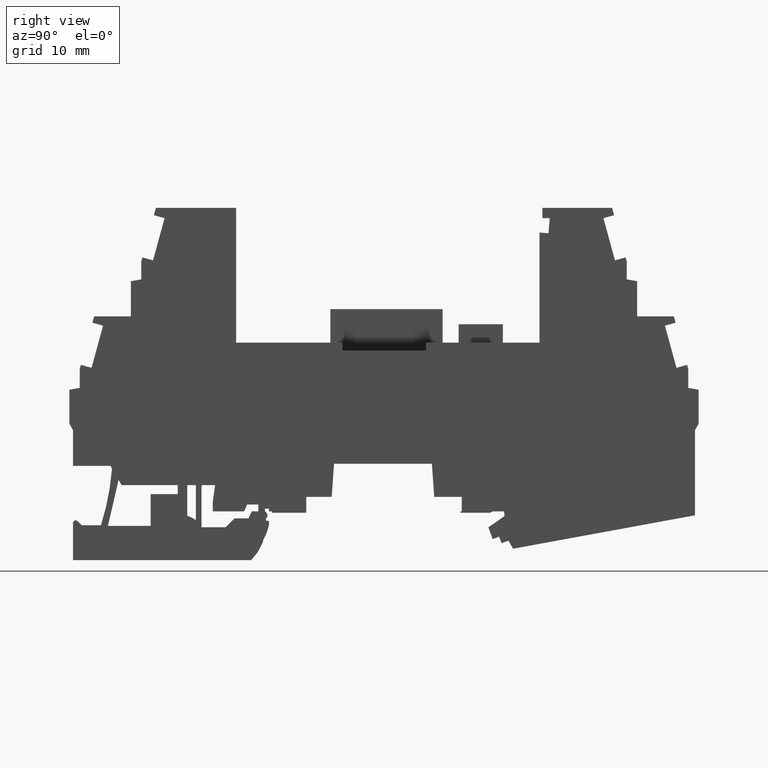
[diagram: clean part render]
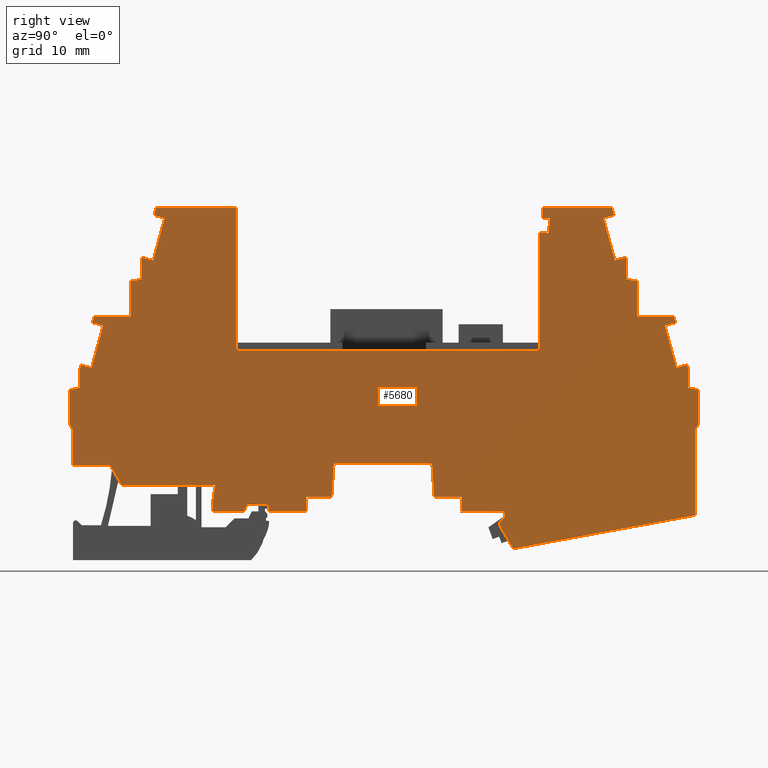
[diagram: same view with one face highlighted and labeled with its STEP entity id]
A machine part, right view. The second image highlights one B-rep face of the part: STEP entity #5680.
In plain terms, the highlighted planar face has unit normal (-1, 0, 0).
Its self-contained STEP definition (entity closure, byte-faithful):
#10=CARTESIAN_POINT('',(163.675787424711,45.2748719518251,
-0.938341446413222));
#20=DIRECTION('',(1.31820478495376E-13,-4.39608926050624E-11,-1.));
#30=DIRECTION('',(1.,5.77082812486863E-24,1.31820478495376E-13));
#40=AXIS2_PLACEMENT_3D('',#10,#20,#30);
#50=PLANE('',#40);
#60=CARTESIAN_POINT('',(96.7530202407098,30.0424286100119,
-0.938341445752412));
#70=DIRECTION('',(2.56261314530685E-13,1.,-4.39608926050624E-11));
#80=VECTOR('',#70,1.);
#90=LINE('',#60,#80);
#100=CARTESIAN_POINT('',(96.7530202407152,51.1748719518589,
-0.938341446681415));
#110=VERTEX_POINT('',#100);
#120=CARTESIAN_POINT('',(96.7530202407205,71.8738971800403,
-0.938341447591361));
#130=VERTEX_POINT('',#120);
#140=EDGE_CURVE('',#110,#130,#90,.T.);
#150=ORIENTED_EDGE('',*,*,#140,.T.);
#160=CARTESIAN_POINT('',(171.854165367466,51.1748719518588,
-0.938341446671515));
#170=DIRECTION('',(-1.,2.48441510225022E-16,-1.31820478495389E-13));
#180=VECTOR('',#170,1.);
#190=LINE('',#160,#180);
#200=CARTESIAN_POINT('',(140.653020451246,51.1748719518588,
-0.938341446675626));
#210=VERTEX_POINT('',#200);
#220=EDGE_CURVE('',#210,#110,#190,.T.);
#230=ORIENTED_EDGE('',*,*,#220,.T.);
#240=CARTESIAN_POINT('',(140.653020451246,30.0424286100119,
-0.938341445746625));
#250=DIRECTION('',(-3.18235044304956E-26,-1.,4.39608926050624E-11));
#260=VECTOR('',#250,1.);
#270=LINE('',#240,#260);
#280=CARTESIAN_POINT('',(140.653020451246,68.3024770578476,
-0.938341447428572));
#290=VERTEX_POINT('',#280);
#300=EDGE_CURVE('',#290,#210,#270,.T.);
#310=ORIENTED_EDGE('',*,*,#300,.T.);
#320=CARTESIAN_POINT('',(150.854165360675,67.4655827229434,
-0.938341447390435));
#330=DIRECTION('',(0.996651672605884,-0.0817645613447162,
3.72582820561022E-12));
#340=VECTOR('',#330,1.);
#350=LINE('',#320,#340);
#360=CARTESIAN_POINT('',(141.954397861838,68.1957130238435,
-0.938341447423708));
#370=VERTEX_POINT('',#360);
#380=EDGE_CURVE('',#290,#370,#350,.T.);
#390=ORIENTED_EDGE('',*,*,#380,.F.);
#400=CARTESIAN_POINT('',(139.972880387126,44.0424286058733,
-0.938341443299544));
#410=DIRECTION('',(0.0817645613447245,0.996651672605883,
-4.70011343753861E-11));
#420=VECTOR('',#410,1.);
#430=LINE('',#400,#420);
#440=CARTESIAN_POINT('',(142.134058703453,70.3856505145184,
-0.938341447519953));
#450=VERTEX_POINT('',#440);
#460=EDGE_CURVE('',#370,#450,#430,.T.);
#470=ORIENTED_EDGE('',*,*,#460,.F.);
#480=CARTESIAN_POINT('',(150.854165360675,70.3856505145184,
-0.938341447518805));
#490=DIRECTION('',(-1.,-2.48441503814189E-16,-1.3182047849537E-13));
#500=VECTOR('',#490,1.);
#510=LINE('',#480,#500);
#520=CARTESIAN_POINT('',(141.074778119476,70.3856505145184,
-0.938341447520092));
#530=VERTEX_POINT('',#520);
#540=EDGE_CURVE('',#450,#530,#510,.T.);
#550=ORIENTED_EDGE('',*,*,#540,.F.);
#560=CARTESIAN_POINT('',(141.074778119476,44.0424286058733,
-0.938341443347982));
#570=DIRECTION('',(1.79793434665674E-23,1.,-4.35524965984235E-11));
#580=VECTOR('',#570,1.);
#590=LINE('',#560,#580);
#600=CARTESIAN_POINT('',(141.074778119476,71.8738971800403,
-0.938341447585517));
#610=VERTEX_POINT('',#600);
#620=EDGE_CURVE('',#530,#610,#590,.T.);
#630=ORIENTED_EDGE('',*,*,#620,.F.);
#640=CARTESIAN_POINT('',(150.854165360675,71.8738971800403,
-0.93834144758423));
#650=DIRECTION('',(1.,4.27677063874898E-23,1.31820478495383E-13));
#660=VECTOR('',#650,1.);
#670=LINE('',#640,#660);
#680=CARTESIAN_POINT('',(151.153287379428,71.8738971800403,
-0.93834144758419));
#690=VERTEX_POINT('',#680);
#700=EDGE_CURVE('',#610,#690,#670,.T.);
#710=ORIENTED_EDGE('',*,*,#700,.F.);
#720=CARTESIAN_POINT('',(158.767115604835,44.0424286058733,
-0.938341446381106));
#730=DIRECTION('',(-0.263873049965359,0.964557418457802,
-4.22984758669483E-11));
#740=VECTOR('',#730,1.);
#750=LINE('',#720,#740);
#760=CARTESIAN_POINT('',(151.446544502388,70.801929680881,
-0.938341447537027));
#770=VERTEX_POINT('',#760);
#780=EDGE_CURVE('',#770,#690,#750,.T.);
#790=ORIENTED_EDGE('',*,*,#780,.T.);
#800=CARTESIAN_POINT('',(85.4518755928881,52.747831258784,
-0.938341446734807));
#810=DIRECTION('',(0.964557418457813,0.26387304996532,
-1.19815583951361E-11));
#820=VECTOR('',#810,1.);
#830=LINE('',#800,#820);
#840=CARTESIAN_POINT('',(149.903252632856,70.3797328009367,
-0.938341447518669));
#850=VERTEX_POINT('',#840);
#860=EDGE_CURVE('',#850,#770,#830,.T.);
#870=ORIENTED_EDGE('',*,*,#860,.T.);
#880=CARTESIAN_POINT('',(157.108323738862,44.0424286058733,
-0.938341446380448));
#890=DIRECTION('',(-0.263873049965258,0.96455741845783,
-4.22984481113694E-11));
#900=VECTOR('',#890,1.);
#910=LINE('',#880,#900);
#920=CARTESIAN_POINT('',(151.572249673886,64.2789071291908,
-0.938341447250252));
#930=VERTEX_POINT('',#920);
#940=EDGE_CURVE('',#930,#850,#910,.T.);
#950=ORIENTED_EDGE('',*,*,#940,.T.);
#960=CARTESIAN_POINT('',(85.4518755928881,46.1904196636059,
-0.938341446446538));
#970=DIRECTION('',(-0.964557418457773,-0.263873049965463,
1.19815861507196E-11));
#980=VECTOR('',#970,1.);
#990=LINE('',#960,#980);
#1000=CARTESIAN_POINT('',(153.115541543419,64.7011040091355,
-0.938341447268609));
#1010=VERTEX_POINT('',#1000);
#1020=EDGE_CURVE('',#1010,#930,#990,.T.);
#1030=ORIENTED_EDGE('',*,*,#1020,.T.);
#1040=CARTESIAN_POINT('',(158.767115604837,44.0424286058733,
-0.938341446381106));
#1050=DIRECTION('',(0.263873049965441,-0.964557418457779,
4.22984758669509E-11));
#1060=VECTOR('',#1050,1.);
#1070=LINE('',#1040,#1060);
#1080=CARTESIAN_POINT('',(153.275787895218,64.1153420018783,
-0.938341447242838));
#1090=VERTEX_POINT('',#1080);
#1100=EDGE_CURVE('',#1010,#1090,#1070,.T.);
#1110=ORIENTED_EDGE('',*,*,#1100,.F.);
#1120=CARTESIAN_POINT('',(153.275787895218,44.0424286058733,
-0.938341446378933));
#1130=DIRECTION('',(2.57518821413981E-26,1.,-4.39608926050624E-11));
#1140=VECTOR('',#1130,1.);
#1150=LINE('',#1120,#1140);
#1160=CARTESIAN_POINT('',(153.275787895218,61.5248719518296,
-0.938341447128957));
#1170=VERTEX_POINT('',#1160);
#1180=EDGE_CURVE('',#1170,#1090,#1150,.T.);
#1190=ORIENTED_EDGE('',*,*,#1180,.T.);
#1200=CARTESIAN_POINT('',(76.5518755928633,75.053367756245,
-0.938341447714206));
#1210=DIRECTION('',(0.984807753012208,-0.173648177666932,
7.24429425231026E-12));
#1220=VECTOR('',#1210,1.);
#1230=LINE('',#1200,#1220);
#1240=CARTESIAN_POINT('',(154.775787895097,61.2603814807883,
-0.938341447117134));
#1250=VERTEX_POINT('',#1240);
#1260=EDGE_CURVE('',#1170,#1250,#1230,.T.);
#1270=ORIENTED_EDGE('',*,*,#1260,.F.);
#1280=CARTESIAN_POINT('',(154.775787895097,59.7424286058654,
-0.938341447072059));
#1290=DIRECTION('',(-1.20204594567042E-15,-1.,4.39608926050624E-11));
#1300=VECTOR('',#1290,1.);
#1310=LINE('',#1280,#1300);
#1320=CARTESIAN_POINT('',(154.775787895097,56.1748719518101,
-0.938341446893569));
#1330=VERTEX_POINT('',#1320);
#1340=EDGE_CURVE('',#1250,#1330,#1310,.T.);
#1350=ORIENTED_EDGE('',*,*,#1340,.F.);
#1360=CARTESIAN_POINT('',(85.4518755928881,56.1748719518101,
-0.938341446885461));
#1370=DIRECTION('',(-1.,1.74088887097105E-23,3.95461443333262E-13));
#1380=VECTOR('',#1370,1.);
#1390=LINE('',#1360,#1380);
#1400=CARTESIAN_POINT('',(160.09405606851,56.1748719518101,
-0.938341446892867));
#1410=VERTEX_POINT('',#1400);
#1420=EDGE_CURVE('',#1410,#1330,#1390,.T.);
#1430=ORIENTED_EDGE('',*,*,#1420,.T.);
#1440=CARTESIAN_POINT('',(163.413116984907,44.0424286058733,
-0.938341446382942));
#1450=DIRECTION('',(0.26387304996536,-0.964557418457802,
4.22984758669483E-11));
#1460=VECTOR('',#1450,1.);
#1470=LINE('',#1440,#1460);
#1480=CARTESIAN_POINT('',(160.346544502388,55.251929680881,
-0.93834144685226));
#1490=VERTEX_POINT('',#1480);
#1500=EDGE_CURVE('',#1410,#1490,#1470,.T.);
#1510=ORIENTED_EDGE('',*,*,#1500,.F.);
#1520=CARTESIAN_POINT('',(85.4518755928881,34.7630667753526,
-0.938341445944179));
#1530=DIRECTION('',(-0.964557418457813,-0.26387304996532,
1.19815583951361E-11));
#1540=VECTOR('',#1530,1.);
#1550=LINE('',#1520,#1540);
#1560=CARTESIAN_POINT('',(158.803252632856,54.8297328009367,
-0.938341446833904));
#1570=VERTEX_POINT('',#1560);
#1580=EDGE_CURVE('',#1490,#1570,#1550,.T.);
#1590=ORIENTED_EDGE('',*,*,#1580,.F.);
#1600=CARTESIAN_POINT('',(161.754325118935,44.0424286058733,
-0.938341446382285));
#1610=DIRECTION('',(0.263873049965258,-0.96455741845783,
4.22984481113694E-11));
#1620=VECTOR('',#1610,1.);
#1630=LINE('',#1600,#1620);
#1640=CARTESIAN_POINT('',(160.472249673886,48.7289071291908,
-0.938341446565488));
#1650=VERTEX_POINT('',#1640);
#1660=EDGE_CURVE('',#1570,#1650,#1630,.T.);
#1670=ORIENTED_EDGE('',*,*,#1660,.F.);
#1680=CARTESIAN_POINT('',(85.4518755928881,28.2056551801731,
-0.938341445655912));
#1690=DIRECTION('',(0.964557418457773,0.263873049965463,
-1.19815861507196E-11));
#1700=VECTOR('',#1690,1.);
#1710=LINE('',#1680,#1700);
#1720=CARTESIAN_POINT('',(162.015541543419,49.1511040091355,
-0.938341446583843));
#1730=VERTEX_POINT('',#1720);
#1740=EDGE_CURVE('',#1650,#1730,#1710,.T.);
#1750=ORIENTED_EDGE('',*,*,#1740,.F.);
#1760=CARTESIAN_POINT('',(163.413116984907,44.0424286058733,
-0.938341446382942));
#1770=DIRECTION('',(0.263873049965441,-0.964557418457779,
4.22984758669509E-11));
#1780=VECTOR('',#1770,1.);
#1790=LINE('',#1760,#1780);
#1800=CARTESIAN_POINT('',(162.175787895218,48.5653420018782,
-0.938341446558072));
#1810=VERTEX_POINT('',#1800);
#1820=EDGE_CURVE('',#1730,#1810,#1790,.T.);
#1830=ORIENTED_EDGE('',*,*,#1820,.F.);
#1840=CARTESIAN_POINT('',(162.175787895218,44.0424286058733,
-0.938341446382452));
#1850=DIRECTION('',(2.57518821413981E-26,1.,-4.39608926050624E-11));
#1860=VECTOR('',#1850,1.);
#1870=LINE('',#1840,#1860);
#1880=CARTESIAN_POINT('',(162.175787895218,45.824871951849,
-0.938341446437599));
#1890=VERTEX_POINT('',#1880);
#1900=EDGE_CURVE('',#1890,#1810,#1870,.T.);
#1910=ORIENTED_EDGE('',*,*,#1900,.T.);
#1920=CARTESIAN_POINT('',(85.4518755928881,59.35336775626,
-0.938341447025193));
#1930=DIRECTION('',(0.984807753012208,-0.173648177666932,
7.24429425231026E-12));
#1940=VECTOR('',#1930,1.);
#1950=LINE('',#1920,#1940);
#1960=CARTESIAN_POINT('',(163.675787895122,45.5603814808033,
-0.938341446425774));
#1970=VERTEX_POINT('',#1960);
#1980=EDGE_CURVE('',#1890,#1970,#1950,.T.);
#1990=ORIENTED_EDGE('',*,*,#1980,.F.);
#2000=CARTESIAN_POINT('',(163.675787895122,44.0424286058805,
-0.938341446383046));
#2010=DIRECTION('',(-1.20204594567042E-15,-1.,4.39608926050624E-11));
#2020=VECTOR('',#2010,1.);
#2030=LINE('',#2000,#2020);
#2040=CARTESIAN_POINT('',(163.675787895122,40.6248719518588,
-0.938341446208804));
#2050=VERTEX_POINT('',#2040);
#2060=EDGE_CURVE('',#1970,#2050,#2030,.T.);
#2070=ORIENTED_EDGE('',*,*,#2060,.F.);
#2080=CARTESIAN_POINT('',(165.648915149292,44.0424286058805,
-0.938341446383831));
#2090=DIRECTION('',(-0.500000000000001,-0.866025403784438,
3.82689273077534E-11));
#2100=VECTOR('',#2090,1.);
#2110=LINE('',#2080,#2100);
#2120=CARTESIAN_POINT('',(163.153020557102,39.7194123618708,
-0.938341446169069));
#2130=VERTEX_POINT('',#2120);
#2140=EDGE_CURVE('',#2050,#2130,#2110,.T.);
#2150=ORIENTED_EDGE('',*,*,#2140,.F.);
#2160=CARTESIAN_POINT('',(163.153020204201,44.0424286058733,
-0.938341446359114));
#2170=DIRECTION('',(-2.58023692393323E-26,-1.,4.39608926050624E-11));
#2180=VECTOR('',#2170,1.);
#2190=LINE('',#2160,#2180);
#2200=CARTESIAN_POINT('',(163.153020204201,27.3820053737875,
-0.938341445626705));
#2210=VERTEX_POINT('',#2200);
#2220=EDGE_CURVE('',#2130,#2210,#2190,.T.);
#2230=ORIENTED_EDGE('',*,*,#2220,.F.);
#2240=CARTESIAN_POINT('',(150.854165360675,25.1247431109057,
-0.938341445529096));
#2250=DIRECTION('',(-0.983571470813386,-0.18051914525056,
7.80614456234508E-12));
#2260=VECTOR('',#2250,1.);
#2270=LINE('',#2240,#2260);
#2280=CARTESIAN_POINT('',(136.83368340126,22.5515031436857,
-0.938341445417819));
#2290=VERTEX_POINT('',#2280);
#2300=EDGE_CURVE('',#2210,#2290,#2270,.T.);
#2310=ORIENTED_EDGE('',*,*,#2300,.F.);
#2320=CARTESIAN_POINT('',(124.320669813202,44.0424286058733,
-0.938341446364232));
#2330=DIRECTION('',(-0.503170012398067,0.86418744414816,
-3.80568264323575E-11));
#2340=VECTOR('',#2330,1.);
#2350=LINE('',#2320,#2340);
#2360=CARTESIAN_POINT('',(134.874971798065,25.9155628699821,
-0.938341445565966));
#2370=VERTEX_POINT('',#2360);
#2380=EDGE_CURVE('',#2290,#2370,#2350,.T.);
#2390=ORIENTED_EDGE('',*,*,#2380,.F.);
#2400=CARTESIAN_POINT('',(134.602807128728,64.8996467259534,
-0.938341443971854));
#2410=DIRECTION('',(-0.00698126029796187,0.999975630705395,
-4.3244530882907E-11));
#2420=VECTOR('',#2410,1.);
#2430=LINE('',#2400,#2420);
#2440=CARTESIAN_POINT('',(134.871438850106,26.4216121666662,
-0.938341445588209));
#2450=VERTEX_POINT('',#2440);
#2460=EDGE_CURVE('',#2370,#2450,#2430,.T.);
#2470=ORIENTED_EDGE('',*,*,#2460,.F.);
#2480=CARTESIAN_POINT('',(150.854165360675,37.6128377505119,
-0.938341446078084));
#2490=DIRECTION('',(0.819152044288959,0.573576436351093,
-2.51069951089547E-11));
#2500=VECTOR('',#2490,1.);
#2510=LINE('',#2480,#2500);
#2520=CARTESIAN_POINT('',(135.626055204502,26.9500002264709,
-0.938341445611341));
#2530=VERTEX_POINT('',#2520);
#2540=EDGE_CURVE('',#2450,#2530,#2510,.T.);
#2550=ORIENTED_EDGE('',*,*,#2540,.F.);
#2560=CARTESIAN_POINT('',(135.626055204502,44.0424286058733,
-0.938341443108452));
#2570=DIRECTION('',(-1.24900108249674E-16,-1.,4.35524965984235E-11));
#2580=VECTOR('',#2570,1.);
#2590=LINE('',#2560,#2580);
#2600=CARTESIAN_POINT('',(135.626055204502,27.9453465791736,
-0.938341445655098));
#2610=VERTEX_POINT('',#2600);
#2620=EDGE_CURVE('',#2610,#2530,#2590,.T.);
#2630=ORIENTED_EDGE('',*,*,#2620,.T.);
#2640=CARTESIAN_POINT('',(150.854165360675,27.9453465791736,
-0.938341445653091));
#2650=DIRECTION('',(-1.,1.22365731730191E-23,-1.31820478495376E-13));
#2660=VECTOR('',#2650,1.);
#2670=LINE('',#2640,#2660);
#2680=CARTESIAN_POINT('',(129.403020257824,27.9453465791808,
-0.93834144565592));
#2690=VERTEX_POINT('',#2680);
#2700=EDGE_CURVE('',#2610,#2690,#2670,.T.);
#2710=ORIENTED_EDGE('',*,*,#2700,.F.);
#2720=CARTESIAN_POINT('',(129.403020241706,30.0424286100119,
-0.93834144574811));
#2730=DIRECTION('',(-1.79260665994253E-23,-1.,4.39608926050624E-11));
#2740=VECTOR('',#2730,1.);
#2750=LINE('',#2720,#2740);
#2760=CARTESIAN_POINT('',(129.403020241701,30.045346579171,
-0.938341445748238));
#2770=VERTEX_POINT('',#2760);
#2780=EDGE_CURVE('',#2770,#2690,#2750,.T.);
#2790=ORIENTED_EDGE('',*,*,#2780,.T.);
#2800=CARTESIAN_POINT('',(171.854165367466,30.0453465791783,
-0.93834144574264));
#2810=DIRECTION('',(1.,-3.00822995358002E-23,1.31820478495383E-13));
#2820=VECTOR('',#2810,1.);
#2830=LINE('',#2800,#2820);
#2840=CARTESIAN_POINT('',(125.418056835088,30.045346579171,
-0.938341445748762));
#2850=VERTEX_POINT('',#2840);
#2860=EDGE_CURVE('',#2850,#2770,#2830,.T.);
#2870=ORIENTED_EDGE('',*,*,#2860,.T.);
#2880=CARTESIAN_POINT('',(125.418260879368,30.0424286100119,
-0.938341445748634));
#2890=DIRECTION('',(0.0697564737441256,-0.997564050259824,
4.38629902925571E-11));
#2900=VECTOR('',#2890,1.);
#2910=LINE('',#2880,#2900);
#2920=CARTESIAN_POINT('',(125.082082739165,34.8499999958534,
-0.938341445960024));
#2930=VERTEX_POINT('',#2920);
#2940=EDGE_CURVE('',#2930,#2850,#2910,.T.);
#2950=ORIENTED_EDGE('',*,*,#2940,.T.);
#2960=CARTESIAN_POINT('',(171.854165367466,34.8499999958534,
-0.938341445953858));
#2970=DIRECTION('',(1.,3.20130845358182E-17,1.31820478495376E-13));
#2980=VECTOR('',#2970,1.);
#2990=LINE('',#2960,#2980);
#3000=CARTESIAN_POINT('',(110.923225173528,34.8499999958534,
-0.938341445961891));
#3010=VERTEX_POINT('',#3000);
#3020=EDGE_CURVE('',#3010,#2930,#2990,.T.);
#3030=ORIENTED_EDGE('',*,*,#3020,.T.);
#3040=CARTESIAN_POINT('',(110.587047033325,30.0424286100119,
-0.938341445750588));
#3050=DIRECTION('',(0.0697564737442381,0.997564050259816,
-4.38446120427285E-11));
#3060=VECTOR('',#3050,1.);
#3070=LINE('',#3040,#3060);
#3080=CARTESIAN_POINT('',(110.587251077606,30.0453465791783,
-0.938341445750716));
#3090=VERTEX_POINT('',#3080);
#3100=EDGE_CURVE('',#3090,#3010,#3070,.T.);
#3110=ORIENTED_EDGE('',*,*,#3100,.T.);
#3120=CARTESIAN_POINT('',(171.854165367466,30.0453465791783,
-0.93834144574264));
#3130=DIRECTION('',(1.,-3.00822995358002E-23,1.31820478495383E-13));
#3140=VECTOR('',#3130,1.);
#3150=LINE('',#3120,#3140);
#3160=CARTESIAN_POINT('',(106.903020241698,30.045346579171,
-0.938341445751202));
#3170=VERTEX_POINT('',#3160);
#3180=EDGE_CURVE('',#3170,#3090,#3150,.T.);
#3190=ORIENTED_EDGE('',*,*,#3180,.T.);
#3200=CARTESIAN_POINT('',(106.903020241698,30.0424286100119,
-0.938341445751075));
#3210=DIRECTION('',(1.79260665994253E-23,1.,-4.39608926050624E-11));
#3220=VECTOR('',#3210,1.);
#3230=LINE('',#3200,#3220);
#3240=CARTESIAN_POINT('',(106.903020241698,27.9453465791647,
-0.938341445658885));
#3250=VERTEX_POINT('',#3240);
#3260=EDGE_CURVE('',#3250,#3170,#3230,.T.);
#3270=ORIENTED_EDGE('',*,*,#3260,.T.);
#3280=CARTESIAN_POINT('',(150.854165360675,27.9453465791733,
-0.938341445653091));
#3290=DIRECTION('',(1.,5.71583105879582E-24,1.31820478495376E-13));
#3300=VECTOR('',#3290,1.);
#3310=LINE('',#3280,#3300);
#3320=CARTESIAN_POINT('',(101.506785998505,27.9453465791647,
-0.938341445659598));
#3330=VERTEX_POINT('',#3320);
#3340=EDGE_CURVE('',#3330,#3250,#3310,.T.);
#3350=ORIENTED_EDGE('',*,*,#3340,.T.);
#3360=CARTESIAN_POINT('',(101.506785998505,64.8996467259534,
-0.938341442516913));
#3370=DIRECTION('',(2.5777126526941E-26,1.,-4.35524965984235E-11));
#3380=VECTOR('',#3370,1.);
#3390=LINE('',#3360,#3380);
#3400=CARTESIAN_POINT('',(101.506785998505,28.9453465791685,
-0.938341445703557));
#3410=VERTEX_POINT('',#3400);
#3420=EDGE_CURVE('',#3330,#3410,#3390,.T.);
#3430=ORIENTED_EDGE('',*,*,#3420,.F.);
#3440=CARTESIAN_POINT('',(150.854165360675,28.9453465791685,
-0.938341445697054));
#3450=DIRECTION('',(-1.,3.0188977404834E-23,-1.31820478495376E-13));
#3460=VECTOR('',#3450,1.);
#3470=LINE('',#3440,#3460);
#3480=CARTESIAN_POINT('',(98.3662494078751,28.9453465791685,
-0.938341445703971));
#3490=VERTEX_POINT('',#3480);
#3500=EDGE_CURVE('',#3410,#3490,#3470,.T.);
#3510=ORIENTED_EDGE('',*,*,#3500,.F.);
#3520=CARTESIAN_POINT('',(105.334133420227,44.0424286058733,
-0.938341446366737));
#3530=DIRECTION('',(-0.41905817746306,-0.907959384499846,
3.98594752763602E-11));
#3540=VECTOR('',#3530,1.);
#3550=LINE('',#3520,#3540);
#3560=CARTESIAN_POINT('',(97.9047109463361,27.945346579171,
-0.938341445660072));
#3570=VERTEX_POINT('',#3560);
#3580=EDGE_CURVE('',#3490,#3570,#3550,.T.);
#3590=ORIENTED_EDGE('',*,*,#3580,.F.);
#3600=CARTESIAN_POINT('',(150.854165360675,27.945346579171,
-0.938341445653091));
#3610=DIRECTION('',(-1.,5.55111814202352E-17,-1.31820478495376E-13));
#3620=VECTOR('',#3610,1.);
#3630=LINE('',#3600,#3620);
#3640=CARTESIAN_POINT('',(93.3760552046451,27.945346579171,
-0.938341445660669));
#3650=VERTEX_POINT('',#3640);
#3660=EDGE_CURVE('',#3570,#3650,#3630,.T.);
#3670=ORIENTED_EDGE('',*,*,#3660,.F.);
#3680=CARTESIAN_POINT('',(93.3760552047463,64.8996467259534,
-0.938341442159478));
#3690=DIRECTION('',(1.24900090296107E-16,1.,-4.35524965984235E-11));
#3700=VECTOR('',#3690,1.);
#3710=LINE('',#3680,#3700);
#3720=CARTESIAN_POINT('',(93.3760552053136,29.3500002256824,
-0.938341445722417));
#3730=VERTEX_POINT('',#3720);
#3740=EDGE_CURVE('',#3650,#3730,#3710,.T.);
#3750=ORIENTED_EDGE('',*,*,#3740,.F.);
#3760=CARTESIAN_POINT('',(95.4409413528916,44.0424286058733,
-0.938341446368041));
#3770=DIRECTION('',(-0.139173100960066,-0.99026806874157,
4.35147359590145E-11));
#3780=VECTOR('',#3770,1.);
#3790=LINE('',#3760,#3780);
#3800=CARTESIAN_POINT('',(93.7133532411231,31.7500004571015,
-0.938341445827877));
#3810=VERTEX_POINT('',#3800);
#3820=EDGE_CURVE('',#3810,#3730,#3790,.T.);
#3830=ORIENTED_EDGE('',*,*,#3820,.T.);
#3840=CARTESIAN_POINT('',(150.854165360675,31.7500004571145,
-0.938341445820349));
#3850=DIRECTION('',(-1.,-2.56108359937148E-13,-1.31820478484119E-13));
#3860=VECTOR('',#3850,1.);
#3870=LINE('',#3840,#3860);
#3880=CARTESIAN_POINT('',(80.1863591562898,31.7500004570981,
-0.938341445829662));
#3890=VERTEX_POINT('',#3880);
#3900=EDGE_CURVE('',#3810,#3890,#3870,.T.);
#3910=ORIENTED_EDGE('',*,*,#3900,.F.);
#3920=CARTESIAN_POINT('',(73.0893224556003,44.0424286058733,
-0.938341446370986));
#3930=DIRECTION('',(-0.5,0.866025403784439,-3.81371761837738E-11));
#3940=VECTOR('',#3930,1.);
#3950=LINE('',#3920,#3940);
#3960=CARTESIAN_POINT('',(78.5724653202351,34.545346579167,
-0.93834144595276));
#3970=VERTEX_POINT('',#3960);
#3980=EDGE_CURVE('',#3890,#3970,#3950,.T.);
#3990=ORIENTED_EDGE('',*,*,#3980,.F.);
#4000=CARTESIAN_POINT('',(150.854165360675,34.5453465791855,
-0.938341445943232));
#4010=DIRECTION('',(-1.,-2.5615826440919E-13,-1.31820478484113E-13));
#4020=VECTOR('',#4010,1.);
#4030=LINE('',#4000,#4020);
#4040=CARTESIAN_POINT('',(73.1530202788275,34.5453465791656,
-0.938341445953474));
#4050=VERTEX_POINT('',#4040);
#4060=EDGE_CURVE('',#3970,#4050,#4030,.T.);
#4070=ORIENTED_EDGE('',*,*,#4060,.F.);
#4080=CARTESIAN_POINT('',(73.1530202788275,44.0424286058733,
-0.938341446370977));
#4090=DIRECTION('',(-2.57771256903652E-26,-1.,4.39608926050624E-11));
#4100=VECTOR('',#4090,1.);
#4110=LINE('',#4080,#4100);
#4120=CARTESIAN_POINT('',(73.1530202788275,39.7194125656179,
-0.938341446180932));
#4130=VERTEX_POINT('',#4120);
#4140=EDGE_CURVE('',#4130,#4050,#4110,.T.);
#4150=ORIENTED_EDGE('',*,*,#4140,.T.);
#4160=CARTESIAN_POINT('',(70.6571258042708,44.0424286058805,
-0.938341446371311));
#4170=DIRECTION('',(0.500000000000001,-0.866025403784438,
3.81371068253344E-11));
#4180=VECTOR('',#4170,1.);
#4190=LINE('',#4160,#4180);
#4200=CARTESIAN_POINT('',(72.6302530584411,40.6248719518588,
-0.938341446220807));
#4210=VERTEX_POINT('',#4200);
#4220=EDGE_CURVE('',#4210,#4130,#4190,.T.);
#4230=ORIENTED_EDGE('',*,*,#4220,.T.);
#4240=CARTESIAN_POINT('',(72.6302530584411,44.0424286058805,
-0.938341446371046));
#4250=DIRECTION('',(1.20204594561886E-15,-1.,4.39608926050624E-11));
#4260=VECTOR('',#4250,1.);
#4270=LINE('',#4240,#4260);
#4280=CARTESIAN_POINT('',(72.6302530584411,45.5603814808033,
-0.938341446437777));
#4290=VERTEX_POINT('',#4280);
#4300=EDGE_CURVE('',#4290,#4210,#4270,.T.);
#4310=ORIENTED_EDGE('',*,*,#4300,.T.);
#4320=CARTESIAN_POINT('',(150.854165360675,59.35336775626,
-0.938341447033817));
#4330=DIRECTION('',(-0.984807753012208,-0.173648177666932,
7.50392991849422E-12));
#4340=VECTOR('',#4330,1.);
#4350=LINE('',#4320,#4340);
#4360=CARTESIAN_POINT('',(74.1302530583447,45.824871951849,
-0.938341446449204));
#4370=VERTEX_POINT('',#4360);
#4380=EDGE_CURVE('',#4370,#4290,#4350,.T.);
#4390=ORIENTED_EDGE('',*,*,#4380,.T.);
#4400=CARTESIAN_POINT('',(74.1302530583448,44.0424286058733,
-0.938341446370849));
#4410=DIRECTION('',(2.58023692393323E-26,1.,-4.39608926050624E-11));
#4420=VECTOR('',#4410,1.);
#4430=LINE('',#4400,#4420);
#4440=CARTESIAN_POINT('',(74.1302530583448,48.5653420018782,
-0.938341446569678));
#4450=VERTEX_POINT('',#4440);
#4460=EDGE_CURVE('',#4370,#4450,#4430,.T.);
#4470=ORIENTED_EDGE('',*,*,#4460,.F.);
#4480=CARTESIAN_POINT('',(72.8929239686555,44.0424286058733,
-0.938341446371012));
#4490=DIRECTION('',(-0.263873049965441,-0.964557418457779,
4.23680436124385E-11));
#4500=VECTOR('',#4490,1.);
#4510=LINE('',#4480,#4500);
#4520=CARTESIAN_POINT('',(74.2904994101441,49.1511040091355,
-0.938341446595407));
#4530=VERTEX_POINT('',#4520);
#4540=EDGE_CURVE('',#4530,#4450,#4510,.T.);
#4550=ORIENTED_EDGE('',*,*,#4540,.T.);
#4560=CARTESIAN_POINT('',(150.854165360675,28.2056551801731,
-0.938341445664536));
#4570=DIRECTION('',(-0.964557418457773,0.263873049965463,
-1.17272893022759E-11));
#4580=VECTOR('',#4570,1.);
#4590=LINE('',#4560,#4580);
#4600=CARTESIAN_POINT('',(75.8337912796762,48.7289071291908,
-0.938341446576645));
#4610=VERTEX_POINT('',#4600);
#4620=EDGE_CURVE('',#4610,#4530,#4590,.T.);
#4630=ORIENTED_EDGE('',*,*,#4620,.T.);
#4640=CARTESIAN_POINT('',(74.5517158346274,44.0424286058733,
-0.938341446370792));
#4650=DIRECTION('',(-0.263873049965258,-0.96455741845783,
4.2368015856857E-11));
#4660=VECTOR('',#4650,1.);
#4670=LINE('',#4640,#4660);
#4680=CARTESIAN_POINT('',(77.5027883207065,54.8297328009367,
-0.938341446844621));
#4690=VERTEX_POINT('',#4680);
#4700=EDGE_CURVE('',#4690,#4610,#4670,.T.);
#4710=ORIENTED_EDGE('',*,*,#4700,.T.);
#4720=CARTESIAN_POINT('',(150.854165360675,34.7630667753526,
-0.938341445952803));
#4730=DIRECTION('',(0.964557418457813,-0.26387304996532,
1.17272615466923E-11));
#4740=VECTOR('',#4730,1.);
#4750=LINE('',#4720,#4740);
#4760=CARTESIAN_POINT('',(75.9594964511748,55.251929680881,
-0.938341446863388));
#4770=VERTEX_POINT('',#4760);
#4780=EDGE_CURVE('',#4770,#4690,#4750,.T.);
#4790=ORIENTED_EDGE('',*,*,#4780,.T.);
#4800=CARTESIAN_POINT('',(72.8929239686559,44.0424286058733,
-0.938341446371012));
#4810=DIRECTION('',(-0.26387304996536,-0.964557418457802,
4.23680436124358E-11));
#4820=VECTOR('',#4810,1.);
#4830=LINE('',#4800,#4820);
#4840=CARTESIAN_POINT('',(76.2119848850531,56.1748719518101,
-0.938341446903927));
#4850=VERTEX_POINT('',#4840);
#4860=EDGE_CURVE('',#4850,#4770,#4830,.T.);
#4870=ORIENTED_EDGE('',*,*,#4860,.T.);
#4880=CARTESIAN_POINT('',(150.854165360675,56.1748719518101,
-0.938341446894086));
#4890=DIRECTION('',(1.,5.77076102134855E-24,1.31820478495383E-13));
#4900=VECTOR('',#4890,1.);
#4910=LINE('',#4880,#4900);
#4920=CARTESIAN_POINT('',(81.5302530584659,56.1748719518101,
-0.938341446903223));
#4930=VERTEX_POINT('',#4920);
#4940=EDGE_CURVE('',#4850,#4930,#4910,.T.);
#4950=ORIENTED_EDGE('',*,*,#4940,.F.);
#4960=CARTESIAN_POINT('',(81.5302530584658,59.7424286058654,
-0.938341447062406));
#4970=DIRECTION('',(1.20204594561886E-15,-1.,4.39608926050624E-11));
#4980=VECTOR('',#4970,1.);
#4990=LINE('',#4960,#4980);
#5000=CARTESIAN_POINT('',(81.5302530584658,61.2603814807883,
-0.938341447126787));
#5010=VERTEX_POINT('',#5000);
#5020=EDGE_CURVE('',#5010,#4930,#4990,.T.);
#5030=ORIENTED_EDGE('',*,*,#5020,.T.);
#5040=CARTESIAN_POINT('',(159.754165360699,75.053367756245,
-0.938341447725179));
#5050=DIRECTION('',(-0.984807753012208,-0.173648177666932,
7.50392991849422E-12));
#5060=VECTOR('',#5050,1.);
#5070=LINE('',#5040,#5060);
#5080=CARTESIAN_POINT('',(83.0302530583448,61.5248719518296,
-0.938341447138216));
#5090=VERTEX_POINT('',#5080);
#5100=EDGE_CURVE('',#5090,#5010,#5070,.T.);
#5110=ORIENTED_EDGE('',*,*,#5100,.T.);
#5120=CARTESIAN_POINT('',(83.0302530583448,44.0424286058733,
-0.938341446369677));
#5130=DIRECTION('',(2.58023692393323E-26,1.,-4.39608926050624E-11));
#5140=VECTOR('',#5130,1.);
#5150=LINE('',#5120,#5140);
#5160=CARTESIAN_POINT('',(83.0302530583448,64.1153420018783,
-0.938341447252098));
#5170=VERTEX_POINT('',#5160);
#5180=EDGE_CURVE('',#5090,#5170,#5150,.T.);
#5190=ORIENTED_EDGE('',*,*,#5180,.F.);
#5200=CARTESIAN_POINT('',(77.5389253487256,44.0424286058733,
-0.938341446370401));
#5210=DIRECTION('',(-0.263873049965441,-0.964557418457779,
4.23680436124385E-11));
#5220=VECTOR('',#5210,1.);
#5230=LINE('',#5200,#5220);
#5240=CARTESIAN_POINT('',(83.1904994101441,64.7011040091355,
-0.938341447277828));
#5250=VERTEX_POINT('',#5240);
#5260=EDGE_CURVE('',#5250,#5170,#5230,.T.);
#5270=ORIENTED_EDGE('',*,*,#5260,.T.);
#5280=CARTESIAN_POINT('',(150.854165360675,46.1904196636059,
-0.938341446455162));
#5290=DIRECTION('',(0.964557418457773,-0.263873049965463,
1.17272893022759E-11));
#5300=VECTOR('',#5290,1.);
#5310=LINE('',#5280,#5300);
#5320=CARTESIAN_POINT('',(84.7337912796763,64.2789071291908,
-0.938341447259063));
#5330=VERTEX_POINT('',#5320);
#5340=EDGE_CURVE('',#5250,#5330,#5310,.T.);
#5350=ORIENTED_EDGE('',*,*,#5340,.F.);
#5360=CARTESIAN_POINT('',(79.1977172147006,44.0424286058733,
-0.938341446370181));
#5370=DIRECTION('',(0.263873049965258,0.96455741845783,
-4.2368015856857E-11));
#5380=VECTOR('',#5370,1.);
#5390=LINE('',#5360,#5380);
#5400=CARTESIAN_POINT('',(86.4027883207066,70.3797328009368,
-0.938341447527041));
#5410=VERTEX_POINT('',#5400);
#5420=EDGE_CURVE('',#5330,#5410,#5390,.T.);
#5430=ORIENTED_EDGE('',*,*,#5420,.F.);
#5440=CARTESIAN_POINT('',(150.854165360675,52.747831258784,
-0.938341446743431));
#5450=DIRECTION('',(-0.964557418457813,0.26387304996532,
-1.17272615466923E-11));
#5460=VECTOR('',#5450,1.);
#5470=LINE('',#5440,#5460);
#5480=CARTESIAN_POINT('',(84.8594964511749,70.801929680881,
-0.938341447545804));
#5490=VERTEX_POINT('',#5480);
#5500=EDGE_CURVE('',#5410,#5490,#5470,.T.);
#5510=ORIENTED_EDGE('',*,*,#5500,.F.);
#5520=CARTESIAN_POINT('',(77.5389253487274,44.0424286058733,
-0.938341446370401));
#5530=DIRECTION('',(0.263873049965359,0.964557418457802,
-4.23680436124358E-11));
#5540=VECTOR('',#5530,1.);
#5550=LINE('',#5520,#5540);
#5560=CARTESIAN_POINT('',(85.1527535741352,71.8738971800403,
-0.938341447592888));
#5570=VERTEX_POINT('',#5560);
#5580=EDGE_CURVE('',#5490,#5570,#5550,.T.);
#5590=ORIENTED_EDGE('',*,*,#5580,.F.);
#5600=CARTESIAN_POINT('',(171.854165367466,71.8738971800403,
-0.938341447581461));
#5610=DIRECTION('',(-1.,3.12261352265961E-23,-1.31820478495383E-13));
#5620=VECTOR('',#5610,1.);
#5630=LINE('',#5600,#5620);
#5640=EDGE_CURVE('',#130,#5570,#5630,.T.);
#5650=ORIENTED_EDGE('',*,*,#5640,.T.);
#5660=EDGE_LOOP('',(#5650,#5590,#5510,#5430,#5350,#5270,#5190,#5110,
#5030,#4950,#4870,#4790,#4710,#4630,#4550,#4470,#4390,#4310,#4230,#4150,
#4070,#3990,#3910,#3830,#3750,#3670,#3590,#3510,#3430,#3350,#3270,#3190,
#3110,#3030,#2950,#2870,#2790,#2710,#2630,#2550,#2470,#2390,#2310,#2230,
#2150,#2070,#1990,#1910,#1830,#1750,#1670,#1590,#1510,#1430,#1350,#1270,
#1190,#1110,#1030,#950,#870,#790,#710,#630,#550,#470,#390,#310,#230,#150
));
#5670=FACE_OUTER_BOUND('',#5660,.T.);
#5680=ADVANCED_FACE('',(#5670),#50,.F.);